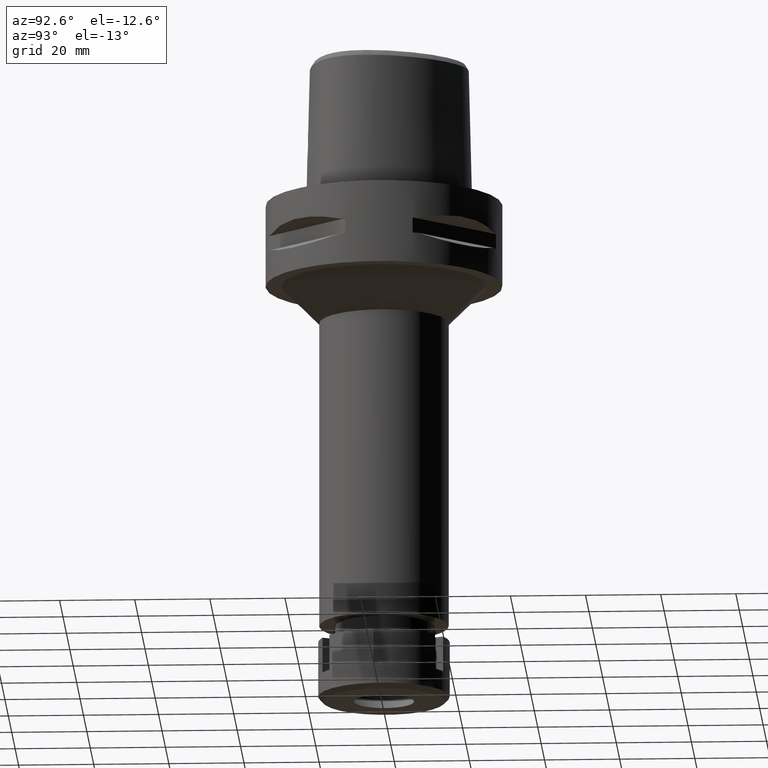
[diagram: clean part render]
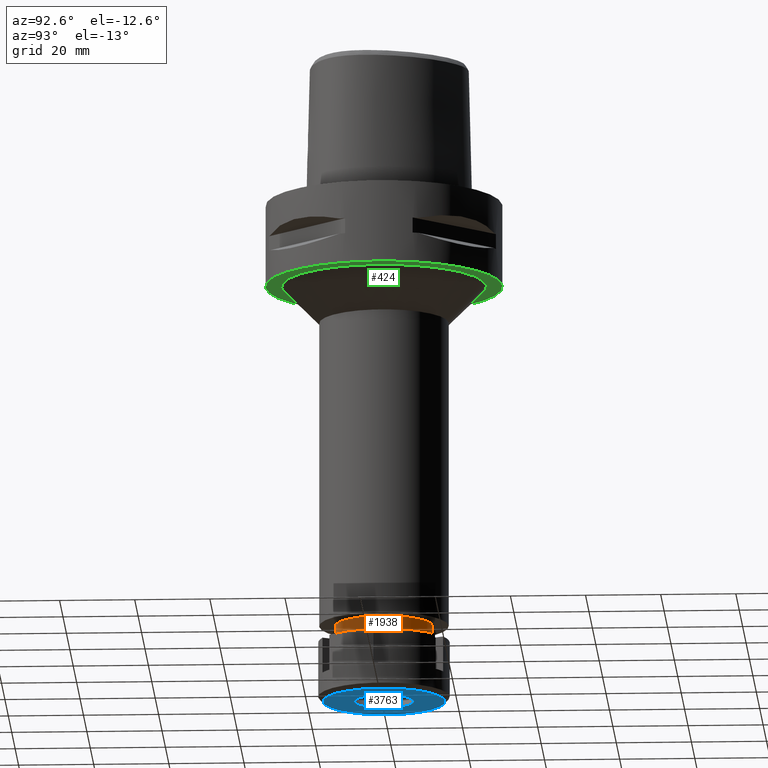
[diagram: same view with three faces highlighted in distinct colors, each labeled with its STEP entity id]
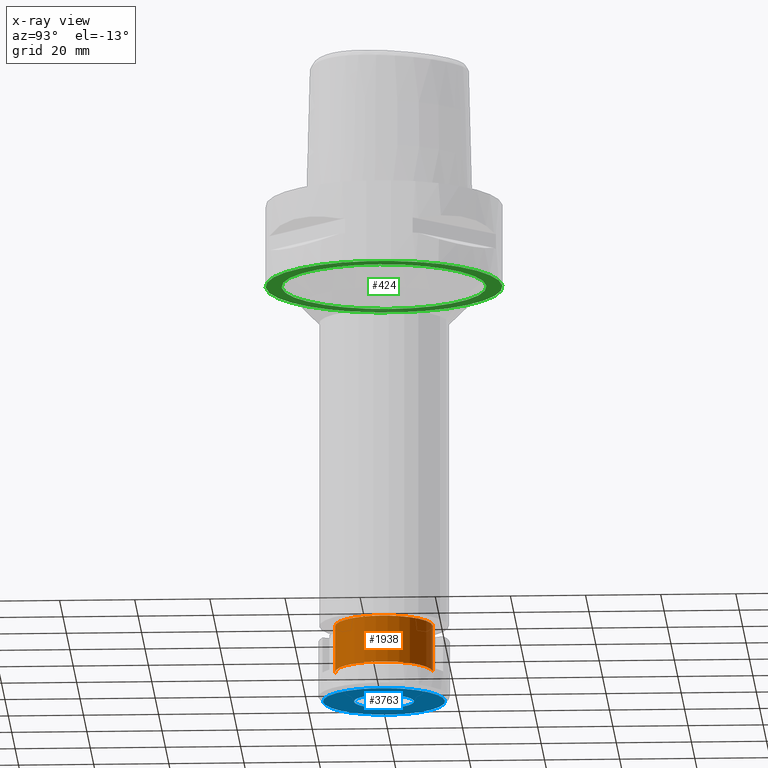
[diagram: x-ray of the same camera — body ghosted, the three highlighted faces saturated]
A machine part, auxiliary view with three faces highlighted in distinct colors.
The next image is the same camera in x-ray (body ghosted, the three faces saturated) — at least one of them is partly hidden behind the body in this view.
Their STEP definitions:

[orange] entity #1938 — the highlighted cylindrical surface (partial cylindrical patch) has radius 13 mm, axis along (0, 0, -1).
#231 = VERTEX_POINT ( 'NONE', #3928 ) ;
#328 = CARTESIAN_POINT ( 'NONE',  ( 0.0000000000000000000, -13.00000000000000000, -127.0000000000000000 ) ) ;
#363 = EDGE_CURVE ( 'NONE', #2215, #2909, #1895, .T. ) ;
#597 = AXIS2_PLACEMENT_3D ( 'NONE', #5438, #2037, #2523 ) ;
#750 = CARTESIAN_POINT ( 'NONE',  ( 0.0000000000000000000, 1.302411870892999789E-14, -127.0000000000000000 ) ) ;
#1193 = ORIENTED_EDGE ( 'NONE', *, *, #363, .T. ) ;
#1247 = DIRECTION ( 'NONE',  ( 0.0000000000000000000, 0.0000000000000000000, -1.000000000000000000 ) ) ;
#1361 = VECTOR ( 'NONE', #2263, 1000.000000000000000 ) ;
#1582 = DIRECTION ( 'NONE',  ( 0.0000000000000000000, -1.000000000000000000, 0.0000000000000000000 ) ) ;
#1808 = ORIENTED_EDGE ( 'NONE', *, *, #4766, .F. ) ;
#1895 = LINE ( 'NONE', #4090, #1361 ) ;
#1938 = ADVANCED_FACE ( 'NONE', ( #2011 ), #3817, .T. ) ;
#2011 = FACE_OUTER_BOUND ( 'NONE', #3739, .T. ) ;
#2037 = DIRECTION ( 'NONE',  ( 0.0000000000000000000, 0.0000000000000000000, -1.000000000000000000 ) ) ;
#2118 = DIRECTION ( 'NONE',  ( 0.0000000000000000000, 0.0000000000000000000, 1.000000000000000000 ) ) ;
#2151 = CIRCLE ( 'NONE', #2609, 13.00000000000000000 ) ;
#2215 = VERTEX_POINT ( 'NONE', #3277 ) ;
#2242 = AXIS2_PLACEMENT_3D ( 'NONE', #750, #2118, #1582 ) ;
#2263 = DIRECTION ( 'NONE',  ( 0.0000000000000000000, 0.0000000000000000000, -1.000000000000000000 ) ) ;
#2523 = DIRECTION ( 'NONE',  ( 0.0000000000000000000, -1.000000000000000000, 0.0000000000000000000 ) ) ;
#2536 = ORIENTED_EDGE ( 'NONE', *, *, #5104, .T. ) ;
#2609 = AXIS2_PLACEMENT_3D ( 'NONE', #3410, #2858, #4155 ) ;
#2858 = DIRECTION ( 'NONE',  ( 0.0000000000000000000, 0.0000000000000000000, -1.000000000000000000 ) ) ;
#2870 = VERTEX_POINT ( 'NONE', #2900 ) ;
#2900 = CARTESIAN_POINT ( 'NONE',  ( 0.0000000000000000000, 13.00000000000000000, -114.5000000000000000 ) ) ;
#2909 = VERTEX_POINT ( 'NONE', #328 ) ;
#3238 = LINE ( 'NONE', #5077, #4220 ) ;
#3277 = CARTESIAN_POINT ( 'NONE',  ( 0.0000000000000000000, -13.00000000000000000, -114.5000000000000000 ) ) ;
#3410 = CARTESIAN_POINT ( 'NONE',  ( 0.0000000000000000000, 1.302411870892999789E-14, -114.5000000000000000 ) ) ;
#3739 = EDGE_LOOP ( 'NONE', ( #2536, #1193, #4129, #1808 ) ) ;
#3817 = CYLINDRICAL_SURFACE ( 'NONE', #597, 13.00000000000000000 ) ;
#3860 = CIRCLE ( 'NONE', #2242, 13.00000000000000000 ) ;
#3928 = CARTESIAN_POINT ( 'NONE',  ( 0.0000000000000000000, 13.00000000000000000, -127.0000000000000000 ) ) ;
#4090 = CARTESIAN_POINT ( 'NONE',  ( 0.0000000000000000000, -13.00000000000000000, -114.5000000000000000 ) ) ;
#4129 = ORIENTED_EDGE ( 'NONE', *, *, #5008, .T. ) ;
#4155 = DIRECTION ( 'NONE',  ( 0.0000000000000000000, 1.000000000000000000, 0.0000000000000000000 ) ) ;
#4220 = VECTOR ( 'NONE', #1247, 1000.000000000000000 ) ;
#4766 = EDGE_CURVE ( 'NONE', #2870, #231, #3238, .T. ) ;
#5008 = EDGE_CURVE ( 'NONE', #2909, #231, #3860, .T. ) ;
#5077 = CARTESIAN_POINT ( 'NONE',  ( 0.0000000000000000000, 13.00000000000000000, -114.5000000000000000 ) ) ;
#5104 = EDGE_CURVE ( 'NONE', #2870, #2215, #2151, .T. ) ;
#5438 = CARTESIAN_POINT ( 'NONE',  ( 0.0000000000000000000, 1.302411870892999789E-14, 6.349999999999999645 ) ) ;

[blue] entity #3763 — the highlighted planar face has unit normal (0, 0, -1).
#75 = CIRCLE ( 'NONE', #3803, 16.25000000000000000 ) ;
#107 = EDGE_CURVE ( 'NONE', #3390, #1481, #75, .T. ) ;
#141 = DIRECTION ( 'NONE',  ( 0.0000000000000000000, 0.0000000000000000000, 1.000000000000000000 ) ) ;
#201 = FACE_BOUND ( 'NONE', #4027, .T. ) ;
#226 = AXIS2_PLACEMENT_3D ( 'NONE', #1600, #3347, #1203 ) ;
#281 = ORIENTED_EDGE ( 'NONE', *, *, #4542, .F. ) ;
#288 = VERTEX_POINT ( 'NONE', #481 ) ;
#292 = PLANE ( 'NONE',  #595 ) ;
#329 = CIRCLE ( 'NONE', #226, 8.000000000000000000 ) ;
#481 = CARTESIAN_POINT ( 'NONE',  ( 0.0000000000000000000, -8.000000000000000000, -16.00000000000000000 ) ) ;
#592 = EDGE_CURVE ( 'NONE', #4072, #288, #5301, .T. ) ;
#595 = AXIS2_PLACEMENT_3D ( 'NONE', #2039, #3760, #4617 ) ;
#670 = DIRECTION ( 'NONE',  ( 0.0000000000000000000, 0.0000000000000000000, 1.000000000000000000 ) ) ;
#1147 = DIRECTION ( 'NONE',  ( 0.0000000000000000000, 1.000000000000000000, 0.0000000000000000000 ) ) ;
#1190 = CARTESIAN_POINT ( 'NONE',  ( 0.0000000000000000000, -16.25000000000000000, -16.00000000000000000 ) ) ;
#1203 = DIRECTION ( 'NONE',  ( 0.0000000000000000000, -1.000000000000000000, 0.0000000000000000000 ) ) ;
#1295 = CARTESIAN_POINT ( 'NONE',  ( 0.0000000000000000000, 16.25000000000000000, -16.00000000000000000 ) ) ;
#1481 = VERTEX_POINT ( 'NONE', #1295 ) ;
#1504 = DIRECTION ( 'NONE',  ( 0.0000000000000000000, -1.000000000000000000, 0.0000000000000000000 ) ) ;
#1600 = CARTESIAN_POINT ( 'NONE',  ( 0.0000000000000000000, 0.0000000000000000000, -16.00000000000000000 ) ) ;
#1790 = CIRCLE ( 'NONE', #4912, 16.25000000000000000 ) ;
#2039 = CARTESIAN_POINT ( 'NONE',  ( 0.0000000000000000000, 0.0000000000000000000, -16.00000000000000000 ) ) ;
#2395 = EDGE_LOOP ( 'NONE', ( #2478, #3267 ) ) ;
#2478 = ORIENTED_EDGE ( 'NONE', *, *, #4872, .F. ) ;
#2688 = CARTESIAN_POINT ( 'NONE',  ( 0.0000000000000000000, 8.000000000000000000, -16.00000000000000000 ) ) ;
#2853 = DIRECTION ( 'NONE',  ( 0.0000000000000000000, 0.0000000000000000000, -1.000000000000000000 ) ) ;
#3093 = ORIENTED_EDGE ( 'NONE', *, *, #592, .F. ) ;
#3267 = ORIENTED_EDGE ( 'NONE', *, *, #107, .F. ) ;
#3325 = CARTESIAN_POINT ( 'NONE',  ( 0.0000000000000000000, 0.0000000000000000000, -16.00000000000000000 ) ) ;
#3347 = DIRECTION ( 'NONE',  ( 0.0000000000000000000, 0.0000000000000000000, -1.000000000000000000 ) ) ;
#3390 = VERTEX_POINT ( 'NONE', #1190 ) ;
#3655 = CARTESIAN_POINT ( 'NONE',  ( 0.0000000000000000000, 0.0000000000000000000, -16.00000000000000000 ) ) ;
#3760 = DIRECTION ( 'NONE',  ( 0.0000000000000000000, 0.0000000000000000000, -1.000000000000000000 ) ) ;
#3763 = ADVANCED_FACE ( 'NONE', ( #4100, #201 ), #292, .T. ) ;
#3803 = AXIS2_PLACEMENT_3D ( 'NONE', #3655, #670, #1504 ) ;
#4014 = CARTESIAN_POINT ( 'NONE',  ( 0.0000000000000000000, 0.0000000000000000000, -16.00000000000000000 ) ) ;
#4027 = EDGE_LOOP ( 'NONE', ( #3093, #281 ) ) ;
#4072 = VERTEX_POINT ( 'NONE', #2688 ) ;
#4100 = FACE_OUTER_BOUND ( 'NONE', #2395, .T. ) ;
#4473 = DIRECTION ( 'NONE',  ( 0.0000000000000000000, 1.000000000000000000, 0.0000000000000000000 ) ) ;
#4542 = EDGE_CURVE ( 'NONE', #288, #4072, #329, .T. ) ;
#4617 = DIRECTION ( 'NONE',  ( 0.0000000000000000000, -1.000000000000000000, 0.0000000000000000000 ) ) ;
#4872 = EDGE_CURVE ( 'NONE', #1481, #3390, #1790, .T. ) ;
#4912 = AXIS2_PLACEMENT_3D ( 'NONE', #4014, #141, #4473 ) ;
#5301 = CIRCLE ( 'NONE', #5393, 8.000000000000000000 ) ;
#5393 = AXIS2_PLACEMENT_3D ( 'NONE', #3325, #2853, #1147 ) ;

[green] entity #424 — the highlighted planar face has unit normal (0, 0, -1).
#50 = CIRCLE ( 'NONE', #1618, 27.25000000000000000 ) ;
#224 = ORIENTED_EDGE ( 'NONE', *, *, #850, .F. ) ;
#265 = ORIENTED_EDGE ( 'NONE', *, *, #3077, .F. ) ;
#386 = ORIENTED_EDGE ( 'NONE', *, *, #5165, .F. ) ;
#424 = ADVANCED_FACE ( 'NONE', ( #5269, #548 ), #1037, .T. ) ;
#440 = DIRECTION ( 'NONE',  ( 0.0000000000000000000, 0.0000000000000000000, 1.000000000000000000 ) ) ;
#548 = FACE_BOUND ( 'NONE', #4589, .T. ) ;
#646 = CARTESIAN_POINT ( 'NONE',  ( 0.0000000000000000000, 31.50000000000000000, -22.00000000000000000 ) ) ;
#699 = AXIS2_PLACEMENT_3D ( 'NONE', #5139, #440, #2184 ) ;
#719 = DIRECTION ( 'NONE',  ( 0.0000000000000000000, 0.0000000000000000000, -1.000000000000000000 ) ) ;
#755 = VERTEX_POINT ( 'NONE', #3999 ) ;
#850 = EDGE_CURVE ( 'NONE', #2221, #1053, #2638, .T. ) ;
#1006 = AXIS2_PLACEMENT_3D ( 'NONE', #4843, #4813, #1288 ) ;
#1037 = PLANE ( 'NONE',  #4768 ) ;
#1053 = VERTEX_POINT ( 'NONE', #646 ) ;
#1141 = DIRECTION ( 'NONE',  ( 0.0000000000000000000, -1.000000000000000000, 0.0000000000000000000 ) ) ;
#1288 = DIRECTION ( 'NONE',  ( 0.0000000000000000000, -1.000000000000000000, 0.0000000000000000000 ) ) ;
#1493 = DIRECTION ( 'NONE',  ( 0.0000000000000000000, 0.0000000000000000000, -1.000000000000000000 ) ) ;
#1596 = ORIENTED_EDGE ( 'NONE', *, *, #3561, .F. ) ;
#1618 = AXIS2_PLACEMENT_3D ( 'NONE', #2061, #719, #3785 ) ;
#2061 = CARTESIAN_POINT ( 'NONE',  ( 0.0000000000000000000, 0.0000000000000000000, -22.00000000000000000 ) ) ;
#2184 = DIRECTION ( 'NONE',  ( 0.0000000000000000000, 1.000000000000000000, 0.0000000000000000000 ) ) ;
#2221 = VERTEX_POINT ( 'NONE', #4549 ) ;
#2377 = DIRECTION ( 'NONE',  ( 0.0000000000000000000, -1.000000000000000000, 0.0000000000000000000 ) ) ;
#2481 = CARTESIAN_POINT ( 'NONE',  ( 0.0000000000000000000, 0.0000000000000000000, -22.00000000000000000 ) ) ;
#2529 = CIRCLE ( 'NONE', #699, 31.50000000000000000 ) ;
#2638 = CIRCLE ( 'NONE', #1006, 31.50000000000000000 ) ;
#2982 = CARTESIAN_POINT ( 'NONE',  ( 0.0000000000000000000, -27.25000000000000000, -22.00000000000000000 ) ) ;
#3077 = EDGE_CURVE ( 'NONE', #1053, #2221, #2529, .T. ) ;
#3511 = AXIS2_PLACEMENT_3D ( 'NONE', #2481, #4685, #1141 ) ;
#3557 = CARTESIAN_POINT ( 'NONE',  ( 0.0000000000000000000, 0.0000000000000000000, -22.00000000000000000 ) ) ;
#3561 = EDGE_CURVE ( 'NONE', #5361, #755, #4571, .T. ) ;
#3785 = DIRECTION ( 'NONE',  ( 0.0000000000000000000, 1.000000000000000000, 0.0000000000000000000 ) ) ;
#3999 = CARTESIAN_POINT ( 'NONE',  ( 0.0000000000000000000, 27.25000000000000000, -22.00000000000000000 ) ) ;
#4123 = EDGE_LOOP ( 'NONE', ( #265, #224 ) ) ;
#4549 = CARTESIAN_POINT ( 'NONE',  ( 0.0000000000000000000, -31.50000000000000000, -22.00000000000000000 ) ) ;
#4571 = CIRCLE ( 'NONE', #3511, 27.25000000000000000 ) ;
#4589 = EDGE_LOOP ( 'NONE', ( #386, #1596 ) ) ;
#4685 = DIRECTION ( 'NONE',  ( 0.0000000000000000000, 0.0000000000000000000, -1.000000000000000000 ) ) ;
#4768 = AXIS2_PLACEMENT_3D ( 'NONE', #3557, #1493, #2377 ) ;
#4813 = DIRECTION ( 'NONE',  ( 0.0000000000000000000, 0.0000000000000000000, 1.000000000000000000 ) ) ;
#4843 = CARTESIAN_POINT ( 'NONE',  ( 0.0000000000000000000, 1.302411870892999789E-14, -22.00000000000000000 ) ) ;
#5139 = CARTESIAN_POINT ( 'NONE',  ( 0.0000000000000000000, 1.302411870892999789E-14, -22.00000000000000000 ) ) ;
#5165 = EDGE_CURVE ( 'NONE', #755, #5361, #50, .T. ) ;
#5269 = FACE_OUTER_BOUND ( 'NONE', #4123, .T. ) ;
#5361 = VERTEX_POINT ( 'NONE', #2982 ) ;